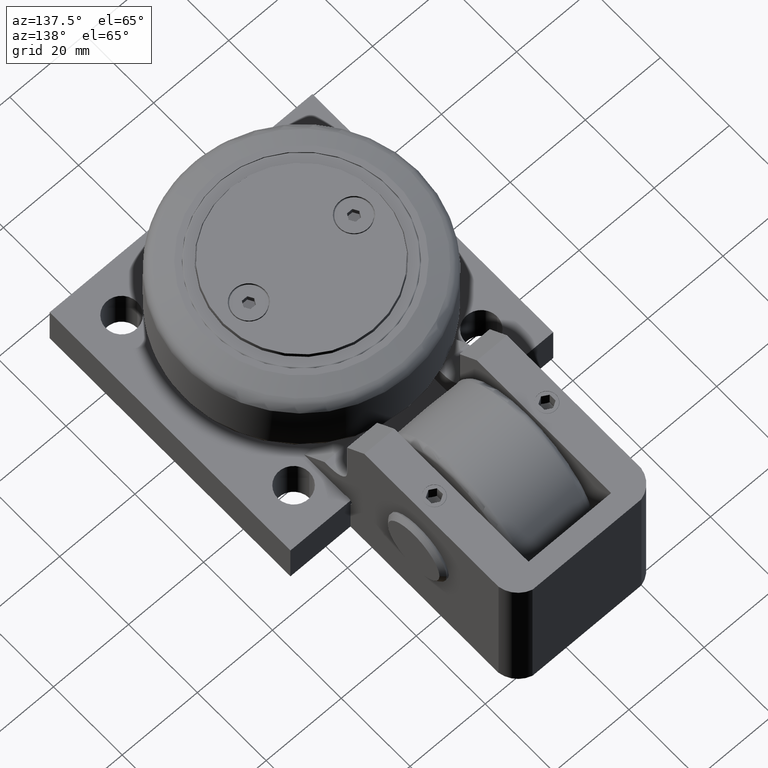
[diagram: clean part render]
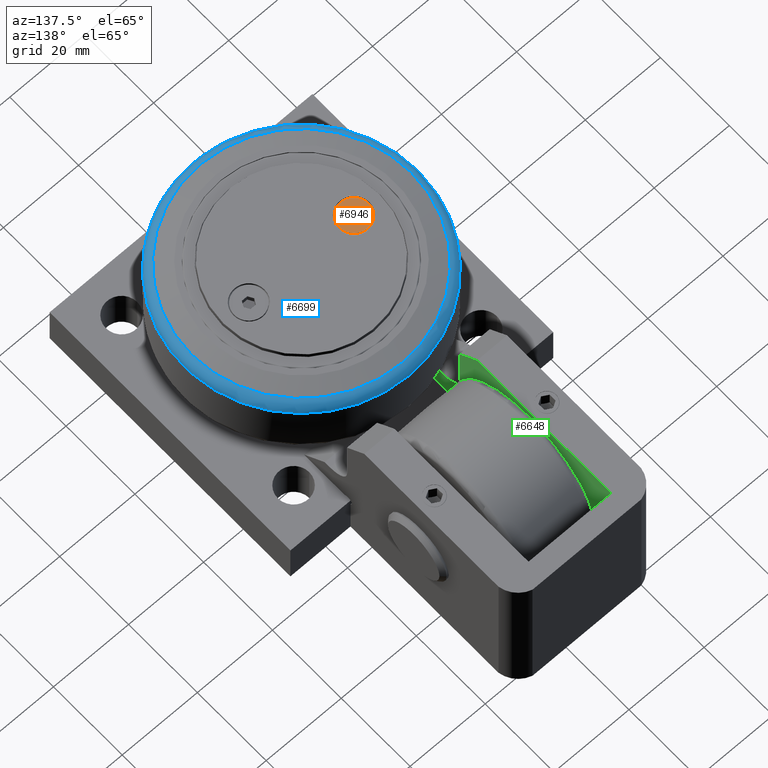
[diagram: same view with three faces highlighted in distinct colors, each labeled with its STEP entity id]
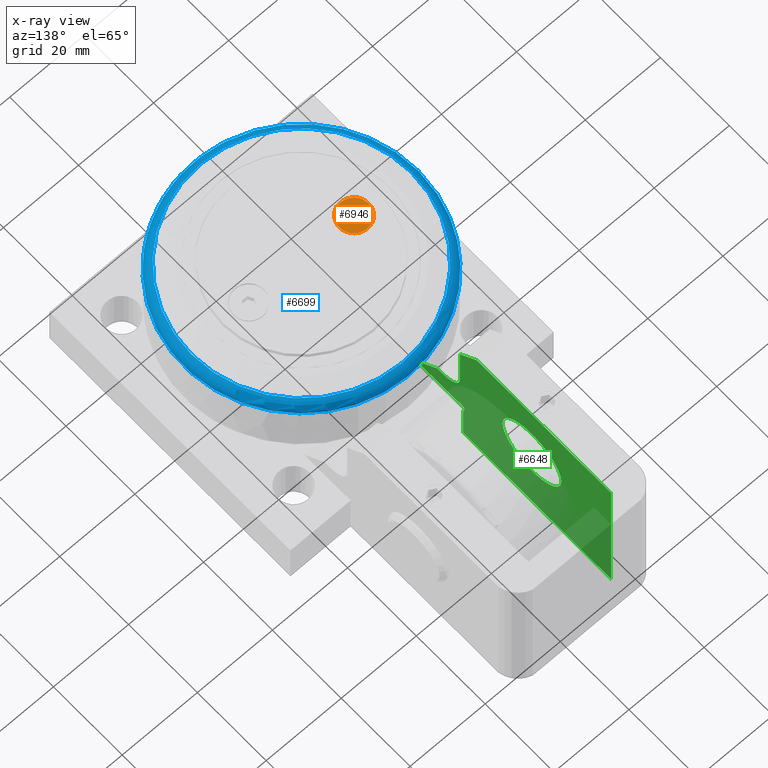
[diagram: x-ray of the same camera — body ghosted, the three highlighted faces saturated]
A machine part, auxiliary view with three faces highlighted in distinct colors.
The next image is the same camera in x-ray (body ghosted, the three faces saturated) — at least one of them is partly hidden behind the body in this view.
Their STEP definitions:

[orange] entity #6946 — the highlighted planar face has unit normal (0, -0, 1).
#101=FACE_BOUND('',#1082,.T.);
#302=PLANE('',#8024);
#673=FACE_OUTER_BOUND('',#1081,.T.);
#1081=EDGE_LOOP('',(#6308,#6309));
#1082=EDGE_LOOP('',(#6310,#6311,#6312,#6313,#6314,#6315));
#1810=CIRCLE('',#8022,3.9);
#1811=CIRCLE('',#8023,3.9);
#2147=LINE('',#12901,#2484);
#2148=LINE('',#12903,#2485);
#2149=LINE('',#12905,#2486);
#2150=LINE('',#12907,#2487);
#2151=LINE('',#12909,#2488);
#2152=LINE('',#12910,#2489);
#2484=VECTOR('',#10440,10.);
#2485=VECTOR('',#10441,10.);
#2486=VECTOR('',#10442,10.);
#2487=VECTOR('',#10443,10.);
#2488=VECTOR('',#10444,10.);
#2489=VECTOR('',#10445,10.);
#3119=VERTEX_POINT('',#12893);
#3120=VERTEX_POINT('',#12895);
#3121=VERTEX_POINT('',#12899);
#3122=VERTEX_POINT('',#12900);
#3123=VERTEX_POINT('',#12902);
#3124=VERTEX_POINT('',#12904);
#3125=VERTEX_POINT('',#12906);
#3126=VERTEX_POINT('',#12908);
#4195=EDGE_CURVE('',#3119,#3120,#1810,.T.);
#4196=EDGE_CURVE('',#3120,#3119,#1811,.T.);
#4197=EDGE_CURVE('',#3121,#3122,#2147,.T.);
#4198=EDGE_CURVE('',#3122,#3123,#2148,.T.);
#4199=EDGE_CURVE('',#3123,#3124,#2149,.T.);
#4200=EDGE_CURVE('',#3124,#3125,#2150,.T.);
#4201=EDGE_CURVE('',#3125,#3126,#2151,.T.);
#4202=EDGE_CURVE('',#3126,#3121,#2152,.T.);
#6308=ORIENTED_EDGE('',*,*,#4196,.F.);
#6309=ORIENTED_EDGE('',*,*,#4195,.F.);
#6310=ORIENTED_EDGE('',*,*,#4197,.T.);
#6311=ORIENTED_EDGE('',*,*,#4198,.T.);
#6312=ORIENTED_EDGE('',*,*,#4199,.T.);
#6313=ORIENTED_EDGE('',*,*,#4200,.T.);
#6314=ORIENTED_EDGE('',*,*,#4201,.T.);
#6315=ORIENTED_EDGE('',*,*,#4202,.T.);
#6946=ADVANCED_FACE('',(#673,#101),#302,.T.);
#8022=AXIS2_PLACEMENT_3D('',#12896,#10434,#10435);
#8023=AXIS2_PLACEMENT_3D('',#12897,#10436,#10437);
#8024=AXIS2_PLACEMENT_3D('',#12898,#10438,#10439);
#10434=DIRECTION('center_axis',(0.,1.22464679914735E-16,-1.));
#10435=DIRECTION('ref_axis',(0.,-1.,0.));
#10436=DIRECTION('center_axis',(0.,1.22464679914735E-16,-1.));
#10437=DIRECTION('ref_axis',(0.,-1.,0.));
#10438=DIRECTION('center_axis',(0.,-1.22464679914735E-16,1.));
#10439=DIRECTION('ref_axis',(0.,-1.,-1.22464679914735E-16));
#10440=DIRECTION('',(0.500000000000001,0.866025403784438,1.06057523872491E-16));
#10441=DIRECTION('',(1.,0.,0.));
#10442=DIRECTION('',(0.5,-0.866025403784439,-1.06057523872491E-16));
#10443=DIRECTION('',(-0.499999999999999,-0.866025403784439,-1.06057523872491E-16));
#10444=DIRECTION('',(-1.,0.,0.));
#10445=DIRECTION('',(-0.500000000000001,0.866025403784438,1.06057523872491E-16));
#12893=CARTESIAN_POINT('',(-18.81974949007,-16.57335428453,21.33));
#12895=CARTESIAN_POINT('',(-18.81974949007,-24.37335428453,21.33));
#12896=CARTESIAN_POINT('Origin',(-18.81974949007,-20.47335428453,21.33));
#12897=CARTESIAN_POINT('Origin',(-18.81974949007,-20.47335428453,21.33));
#12898=CARTESIAN_POINT('Origin',(-18.81974949007,-22.42335428453,21.33));
#12899=CARTESIAN_POINT('',(-20.2631251630441,-20.47335428453,21.33));
#12900=CARTESIAN_POINT('',(-19.541437326557,-19.22335428453,21.33));
#12901=CARTESIAN_POINT('',(-20.1440466700237,-20.26710428453,21.33));
#12902=CARTESIAN_POINT('',(-18.098061653583,-19.22335428453,21.33));
#12903=CARTESIAN_POINT('',(-18.4589055718265,-19.22335428453,21.33));
#12904=CARTESIAN_POINT('',(-17.3763738170959,-20.47335428453,21.33));
#12905=CARTESIAN_POINT('',(-17.1346083918728,-20.89210428453,21.33));
#12906=CARTESIAN_POINT('',(-18.098061653583,-21.72335428453,21.33));
#12907=CARTESIAN_POINT('',(-18.3398270788061,-22.14210428453,21.33));
#12908=CARTESIAN_POINT('',(-19.541437326557,-21.72335428453,21.33));
#12909=CARTESIAN_POINT('',(-19.1805934083135,-21.72335428453,21.33));
#12910=CARTESIAN_POINT('',(-19.6605158195774,-21.51710428453,21.33));

[blue] entity #6699 — the highlighted toroidal blend (fillet) surface has major radius 28.218 mm and minor (blend) radius 3 mm.
#22=TOROIDAL_SURFACE('',#7291,28.2180405195054,3.);
#426=FACE_OUTER_BOUND('',#822,.T.);
#822=EDGE_LOOP('',(#4942,#4943,#4944,#4945,#4946,#4947,#4948));
#1320=CIRCLE('',#7285,29.2441009494824);
#1321=CIRCLE('',#7286,29.2441009494824);
#1322=CIRCLE('',#7287,29.2441009494824);
#1323=CIRCLE('',#7288,31.2178476051361);
#1324=CIRCLE('',#7289,31.2178476051361);
#1326=CIRCLE('',#7292,3.);
#2843=VERTEX_POINT('',#11642);
#2844=VERTEX_POINT('',#11644);
#2845=VERTEX_POINT('',#11646);
#2846=VERTEX_POINT('',#11676);
#2847=VERTEX_POINT('',#11677);
#3570=EDGE_CURVE('',#2844,#2843,#1320,.T.);
#3571=EDGE_CURVE('',#2845,#2844,#1321,.T.);
#3572=EDGE_CURVE('',#2843,#2845,#1322,.T.);
#3573=EDGE_CURVE('',#2846,#2847,#1323,.T.);
#3574=EDGE_CURVE('',#2847,#2846,#1324,.T.);
#3576=EDGE_CURVE('',#2845,#2847,#1326,.T.);
#4942=ORIENTED_EDGE('',*,*,#3570,.T.);
#4943=ORIENTED_EDGE('',*,*,#3572,.T.);
#4944=ORIENTED_EDGE('',*,*,#3576,.T.);
#4945=ORIENTED_EDGE('',*,*,#3574,.T.);
#4946=ORIENTED_EDGE('',*,*,#3573,.T.);
#4947=ORIENTED_EDGE('',*,*,#3576,.F.);
#4948=ORIENTED_EDGE('',*,*,#3571,.T.);
#6699=ADVANCED_FACE('',(#426),#22,.T.);
#7285=AXIS2_PLACEMENT_3D('',#11645,#8832,#8833);
#7286=AXIS2_PLACEMENT_3D('',#11647,#8834,#8835);
#7287=AXIS2_PLACEMENT_3D('',#11648,#8836,#8837);
#7288=AXIS2_PLACEMENT_3D('',#11678,#8838,#8839);
#7289=AXIS2_PLACEMENT_3D('',#11679,#8840,#8841);
#7291=AXIS2_PLACEMENT_3D('',#11681,#8844,#8845);
#7292=AXIS2_PLACEMENT_3D('',#11682,#8846,#8847);
#8832=DIRECTION('center_axis',(0.,1.21543267145725E-63,-1.));
#8833=DIRECTION('ref_axis',(1.21543267145725E-63,-1.,-1.21543267145725E-63));
#8834=DIRECTION('center_axis',(0.,1.21543267145725E-63,-1.));
#8835=DIRECTION('ref_axis',(1.21543267145725E-63,-1.,-1.21543267145725E-63));
#8836=DIRECTION('center_axis',(0.,1.21543267145725E-63,-1.));
#8837=DIRECTION('ref_axis',(1.21543267145725E-63,-1.,-1.21543267145725E-63));
#8838=DIRECTION('center_axis',(0.,-1.21543267145725E-63,1.));
#8839=DIRECTION('ref_axis',(-1.22460635382238E-16,-1.,-1.21543267145725E-63));
#8840=DIRECTION('center_axis',(0.,-1.21543267145725E-63,1.));
#8841=DIRECTION('ref_axis',(-1.22460635382238E-16,-1.,-1.21543267145725E-63));
#8844=DIRECTION('center_axis',(0.,-1.21543267145725E-63,1.));
#8845=DIRECTION('ref_axis',(1.,0.,0.));
#8846=DIRECTION('center_axis',(1.42254030829575E-16,-1.,-1.21543267145725E-63));
#8847=DIRECTION('ref_axis',(-1.,-1.42254030829575E-16,0.));
#11642=CARTESIAN_POINT('',(-4.81974949007195,-49.7174552340085,19.3052735831675));
#11644=CARTESIAN_POINT('',(-4.81974949007195,8.77074666495631,19.3052735831675));
#11645=CARTESIAN_POINT('Origin',(-4.81974949007195,-20.4733542845261,19.3052735831675));
#11646=CARTESIAN_POINT('',(-34.0638504395543,-20.4733542845261,19.3052735831675));
#11647=CARTESIAN_POINT('Origin',(-4.81974949007195,-20.4733542845261,19.3052735831675));
#11648=CARTESIAN_POINT('Origin',(-4.81974949007195,-20.4733542845261,19.3052735831675));
#11676=CARTESIAN_POINT('',(-4.81974949007196,10.7444933206101,16.5202170229474));
#11677=CARTESIAN_POINT('',(-36.0375970952081,-20.4733542845261,16.5202170229474));
#11678=CARTESIAN_POINT('Origin',(-4.81974949007196,-20.4733542845261,16.5202170229474));
#11679=CARTESIAN_POINT('Origin',(-4.81974949007196,-20.4733542845261,16.5202170229474));
#11681=CARTESIAN_POINT('Origin',(-4.81974949007196,-20.4733542845261,16.4861957208097));
#11682=CARTESIAN_POINT('Origin',(-33.0377900095773,-20.4733542845261,16.4861957208097));

[green] entity #6648 — the highlighted planar face has unit normal (-1, -0, -0).
#73=FACE_BOUND('',#756,.T.);
#127=PLANE('',#7077);
#375=FACE_OUTER_BOUND('',#755,.T.);
#755=EDGE_LOOP('',(#4503,#4504,#4505,#4506,#4507,#4508,#4509,#4510,#4511,
#4512,#4513));
#756=EDGE_LOOP('',(#4514));
#1162=CIRCLE('',#7078,5.);
#1163=CIRCLE('',#7079,1.2);
#1164=CIRCLE('',#7080,8.55);
#1910=LINE('',#10920,#2247);
#1918=LINE('',#10948,#2255);
#1925=LINE('',#10970,#2262);
#1946=LINE('',#11032,#2283);
#1947=LINE('',#11033,#2284);
#1948=LINE('',#11035,#2285);
#1949=LINE('',#11037,#2286);
#1950=LINE('',#11040,#2287);
#1951=LINE('',#11042,#2288);
#2247=VECTOR('',#8253,10.);
#2255=VECTOR('',#8277,10.);
#2262=VECTOR('',#8294,10.);
#2283=VECTOR('',#8345,10.);
#2284=VECTOR('',#8346,10.);
#2285=VECTOR('',#8347,10.);
#2286=VECTOR('',#8348,10.);
#2287=VECTOR('',#8351,10.);
#2288=VECTOR('',#8352,10.);
#2599=VERTEX_POINT('',#10918);
#2600=VERTEX_POINT('',#10919);
#2611=VERTEX_POINT('',#10945);
#2612=VERTEX_POINT('',#10947);
#2621=VERTEX_POINT('',#10967);
#2622=VERTEX_POINT('',#10969);
#2648=VERTEX_POINT('',#11031);
#2649=VERTEX_POINT('',#11034);
#2650=VERTEX_POINT('',#11036);
#2651=VERTEX_POINT('',#11038);
#2652=VERTEX_POINT('',#11041);
#2653=VERTEX_POINT('',#11044);
#3272=EDGE_CURVE('',#2599,#2600,#1910,.T.);
#3286=EDGE_CURVE('',#2611,#2612,#1918,.T.);
#3297=EDGE_CURVE('',#2621,#2622,#1925,.T.);
#3329=EDGE_CURVE('',#2600,#2648,#1946,.T.);
#3330=EDGE_CURVE('',#2612,#2599,#1947,.T.);
#3331=EDGE_CURVE('',#2649,#2611,#1948,.T.);
#3332=EDGE_CURVE('',#2650,#2649,#1949,.T.);
#3333=EDGE_CURVE('',#2651,#2650,#1162,.T.);
#3334=EDGE_CURVE('',#2622,#2651,#1950,.T.);
#3335=EDGE_CURVE('',#2652,#2621,#1951,.T.);
#3336=EDGE_CURVE('',#2652,#2648,#1163,.T.);
#3337=EDGE_CURVE('',#2653,#2653,#1164,.T.);
#4503=ORIENTED_EDGE('',*,*,#3329,.F.);
#4504=ORIENTED_EDGE('',*,*,#3272,.F.);
#4505=ORIENTED_EDGE('',*,*,#3330,.F.);
#4506=ORIENTED_EDGE('',*,*,#3286,.F.);
#4507=ORIENTED_EDGE('',*,*,#3331,.F.);
#4508=ORIENTED_EDGE('',*,*,#3332,.F.);
#4509=ORIENTED_EDGE('',*,*,#3333,.F.);
#4510=ORIENTED_EDGE('',*,*,#3334,.F.);
#4511=ORIENTED_EDGE('',*,*,#3297,.F.);
#4512=ORIENTED_EDGE('',*,*,#3335,.F.);
#4513=ORIENTED_EDGE('',*,*,#3336,.T.);
#4514=ORIENTED_EDGE('',*,*,#3337,.T.);
#6648=ADVANCED_FACE('',(#375,#73),#127,.F.);
#7077=AXIS2_PLACEMENT_3D('',#11030,#8343,#8344);
#7078=AXIS2_PLACEMENT_3D('',#11039,#8349,#8350);
#7079=AXIS2_PLACEMENT_3D('',#11043,#8353,#8354);
#7080=AXIS2_PLACEMENT_3D('',#11045,#8355,#8356);
#8253=DIRECTION('',(9.86076131526265E-32,-1.,0.));
#8277=DIRECTION('',(-9.86076131526265E-32,1.,4.44089209850062E-16));
#8294=DIRECTION('',(-2.78904447747368E-31,0.707106781186547,0.707106781186548));
#8343=DIRECTION('center_axis',(-1.,-9.86076131526265E-32,-2.95822839457879E-31));
#8344=DIRECTION('ref_axis',(-2.95822839457879E-31,0.,1.));
#8345=DIRECTION('',(-2.95822839457879E-31,0.,1.));
#8346=DIRECTION('',(2.95822839457879E-31,1.11022302462515E-16,-1.));
#8347=DIRECTION('',(-2.78904447747368E-31,0.707106781186547,0.707106781186548));
#8348=DIRECTION('',(-2.95822839457879E-31,3.63345717150052E-16,1.));
#8349=DIRECTION('center_axis',(1.,9.86076131526264E-32,2.95822839457879E-31));
#8350=DIRECTION('ref_axis',(1.39452223873683E-31,0.707106781186549,-0.707106781186546));
#8351=DIRECTION('',(-9.86076131526265E-32,1.,4.44089209850062E-16));
#8352=DIRECTION('',(9.86076131526265E-32,-1.,0.));
#8353=DIRECTION('center_axis',(-1.,-9.86076131526264E-32,-2.95822839457879E-31));
#8354=DIRECTION('ref_axis',(-9.86076131526265E-32,1.,4.44089209850062E-16));
#8355=DIRECTION('center_axis',(-1.,-9.86076131526264E-32,-2.95822839457879E-31));
#8356=DIRECTION('ref_axis',(9.86076131526265E-32,-1.,-4.44089209850062E-16));
#10918=CARTESIAN_POINT('',(-15.8197494900719,57.526645715474,-20.));
#10919=CARTESIAN_POINT('',(-15.8197494900719,14.5266457154739,-20.));
#10920=CARTESIAN_POINT('',(-15.8197494900719,15.526645715474,-20.));
#10945=CARTESIAN_POINT('',(-15.8197494900719,18.526645715474,20.));
#10947=CARTESIAN_POINT('',(-15.8197494900719,57.526645715474,20.));
#10948=CARTESIAN_POINT('',(-15.8197494900719,4.52664571547397,20.));
#10967=CARTESIAN_POINT('',(-15.8197494900719,1.02664571547397,-8.));
#10969=CARTESIAN_POINT('',(-15.8197494900719,7.02664571547397,-2.00000000000001));
#10970=CARTESIAN_POINT('',(-15.8197494900719,13.2242263606353,4.19758064516129));
#11030=CARTESIAN_POINT('Origin',(-15.8197494900719,16.526645715474,-18.));
#11031=CARTESIAN_POINT('',(-15.8197494900719,14.526645715474,-9.69442719099993));
#11032=CARTESIAN_POINT('',(-15.8197494900719,14.5266457154739,-19.));
#11033=CARTESIAN_POINT('',(-15.8197494900719,57.526645715474,20.));
#11034=CARTESIAN_POINT('',(-15.8197494900719,13.526645715474,15.));
#11035=CARTESIAN_POINT('',(-15.8197494900719,15.7242263606353,17.1975806451613));
#11036=CARTESIAN_POINT('',(-15.8197494900719,13.526645715474,2.99999999999999));
#11037=CARTESIAN_POINT('',(-15.8197494900719,13.526645715474,-2.));
#11038=CARTESIAN_POINT('',(-15.8197494900719,8.52664571547398,-2.));
#11039=CARTESIAN_POINT('Origin',(-15.8197494900719,8.52664571547398,3.));
#11040=CARTESIAN_POINT('',(-15.8197494900719,4.52664571547397,-2.00000000000001));
#11041=CARTESIAN_POINT('',(-15.8197494900719,12.8322185244741,-8.00000000000001));
#11042=CARTESIAN_POINT('',(-15.8197494900719,-7.97335428452605,-8.));
#11043=CARTESIAN_POINT('Origin',(-15.8197494900719,13.726645715474,-8.80000000000001));
#11044=CARTESIAN_POINT('',(-15.8197494900719,43.076645715474,2.5));
#11045=CARTESIAN_POINT('Origin',(-15.8197494900719,34.526645715474,2.49999999999999));